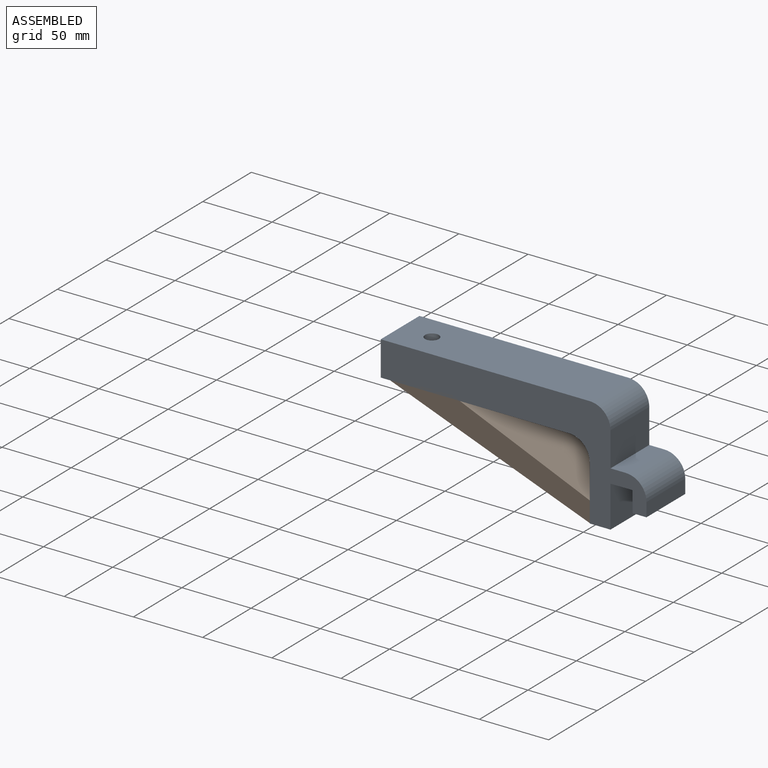
[diagram: assembled view]
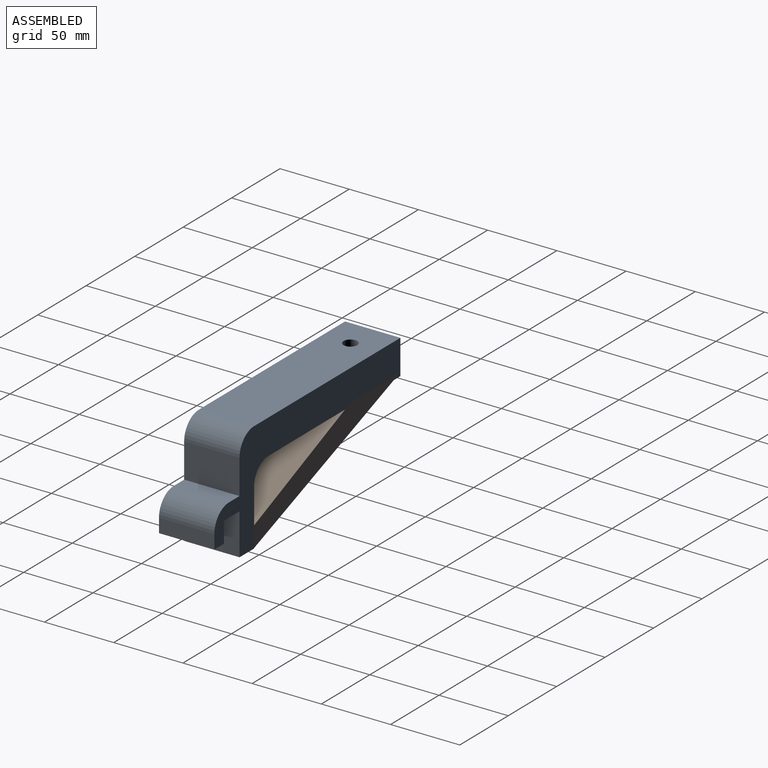
[diagram: assembled view, second angle]
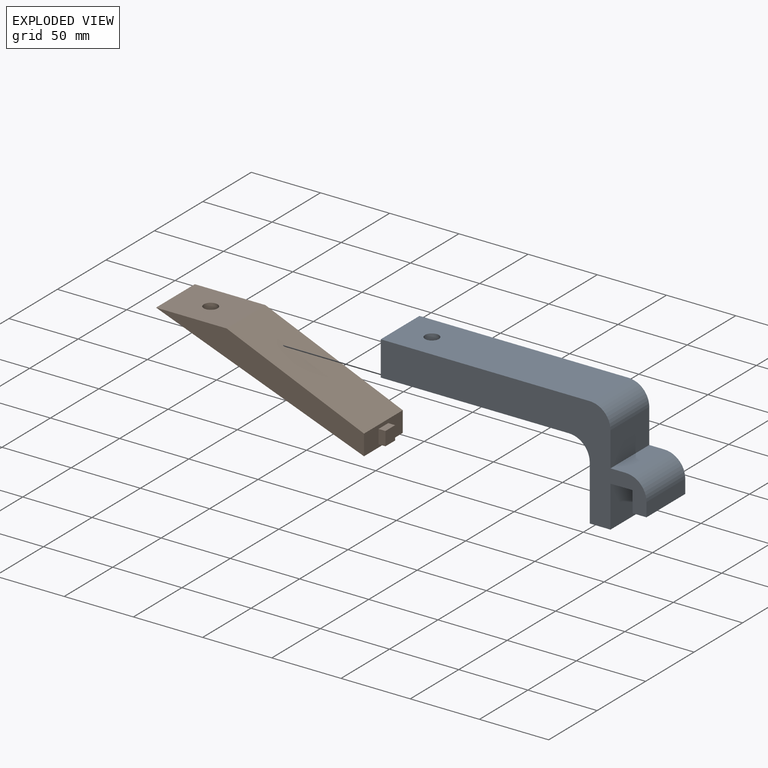
[diagram: exploded view]
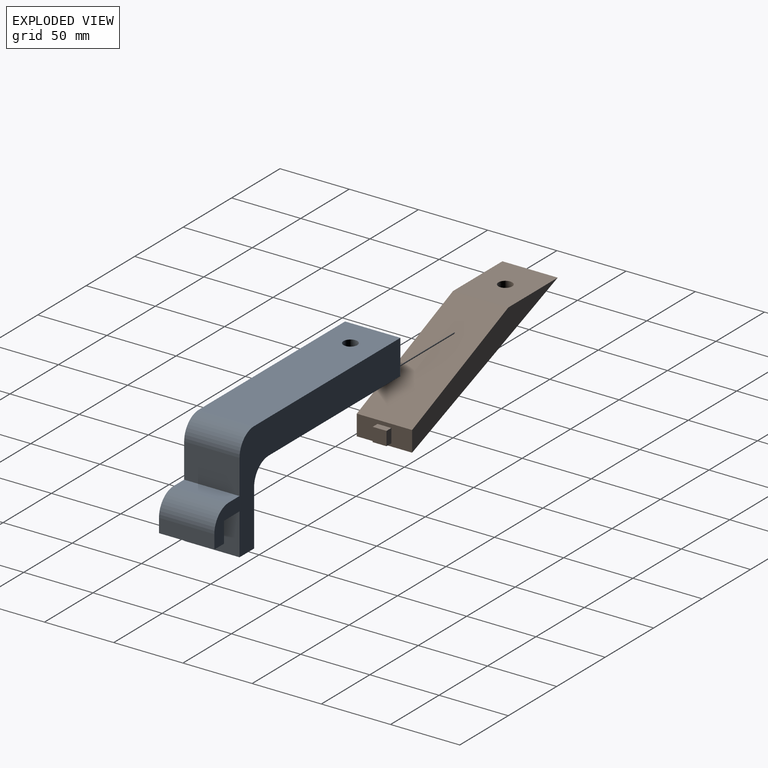
[diagram: exploded view, second angle]
ASSEMBLY  parts=2 mates=2
PART A: 23 faces, bbox 192x40x79.9 mm
  f0: plane 40x30mm, normal (-1,0,0), area 1200mm2, adj f1,f14,f15,f16
  f1: plane 40x16mm, normal (0,0,1), area 640mm2, adj f0,f2,f15,f16
  f2: plane 40x15mm, normal (1,0,0), area 600mm2, adj f1,f3,f15,f16
  f3: plane 40x10mm, normal (0,0,1), area 400mm2, adj f2,f4,f15,f16
  f4: plane 40x10mm, normal (-1,0,0), area 400mm2, adj f3,f5,f15,f16
  f5: cylinder r=15mm len=40mm, axis (0,1,0), area 942.5mm2, adj f4,f6,f15,f16
  f6: plane 40x11mm, normal (0,0,-1), area 440mm2, adj f5,f7,f15,f16
  f7: plane 40x24.9mm, normal (-1,0,0), area 996mm2, adj f6,f8,f15,f16
  f8: cylinder r=15mm len=40mm, axis (0,1,0), area 942.5mm2, adj f7,f9,f15,f16
  f9: plane 151x40mm, normal (0,0,-1), area 5961.5mm2, adj f8,f10,f15,f16,f17
  f10: plane 40x25mm, normal (1,0,0), area 1000mm2, adj f9,f11,f15,f16
  f11: plane 136x40mm, normal (0,0,1), area 5361.5mm2, adj f10,f12,f15,f16,f17
  f12: cylinder r=15mm len=40mm, axis (0,1,0), area 942.5mm2, adj f11,f13,f15,f16
  f13: plane 40x39.9mm, normal (1,0,0), area 1496mm2, adj f12,f14,f15,f16,f18,f19,f20,f21
  f14: plane 40x15mm, normal (0,0,1), area 600mm2, adj f0,f13,f15,f16
  f15: plane 192x79.9mm, normal (0,-1,0), area 5335.2mm2, adj f0,f1,f2,f3,f4,f5,f6,f7
  f16: plane 192x79.9mm, normal (0,1,0), area 5335.2mm2, adj f0,f1,f2,f3,f4,f5,f6,f7
  f17: cylinder r=5mm len=25mm, axis (0,0,-1), area 785.4mm2, adj f9,f11
  f18: plane 10x5mm, normal (0,0,-1), area 50mm2, adj f13,f19,f21,f22
  f19: plane 10x5mm, normal (0,1,0), area 50mm2, adj f13,f18,f20,f22
  f20: plane 10x5mm, normal (0,0,1), area 50mm2, adj f13,f19,f21,f22
  f21: plane 10x5mm, normal (0,-1,0), area 50mm2, adj f13,f18,f20,f22
  f22: plane 10x10mm, normal (1,0,0), area 100mm2, adj f18,f19,f20,f21
PART B: 12 faces, bbox 156x40.8x57.7 mm
  f0: plane 40x14.8mm, normal (-1,0,0), area 492mm2, adj f1,f3,f4,f5,f6,f7,f8,f9
  f1: plane 99.25x42.11mm, normal (-0.39,0,-0.92), area 4312.7mm2, adj f0,f2,f4,f5
  f2: plane 51x40mm, normal (0,0,-1), area 1961.5mm2, adj f1,f3,f4,f5,f11
  f3: plane 151.05x57.71mm, normal (0.35,0,0.94), area 6342.8mm2, adj f0,f2,f4,f5,f11
  f4: plane 150.25x56.91mm, normal (0,-1,0), area 2185.7mm2, adj f0,f1,f2,f3
  f5: plane 150.25x56.91mm, normal (0,1,0), area 2185.7mm2, adj f0,f1,f2,f3
  f6: plane 10x5mm, normal (0,0,1), area 50mm2, adj f0,f7,f9,f10
  f7: plane 10x5mm, normal (0,1,0), area 50mm2, adj f0,f6,f8,f10
  f8: plane 10x5mm, normal (0,0,-1), area 50mm2, adj f0,f7,f9,f10
  f9: plane 10x5mm, normal (0,-1,0), area 50mm2, adj f0,f6,f8,f10
  f10: plane 10x10mm, normal (-1,0,0), area 100mm2, adj f6,f7,f8,f9
  f11: cylinder r=5mm len=11.55mm, axis (0,0,-1), area 303.4mm2, adj f2,f3
PLACE A rot(axis=(0,1,0),180deg) t=(-17.39,-3.55,-19.08)mm
PLACE B rot(axis=(0,1,0),180deg) t=(-150.16,-3.55,-4.76)mm
MATE parallel B.f0 <-> A.f13  axis (1,0,0) through (0.09,-28.55,-72.26)mm
MATE fastened B.f0 <-> A.f13  axis (1,0,0) through (0.09,-23.55,-72.26)mm
